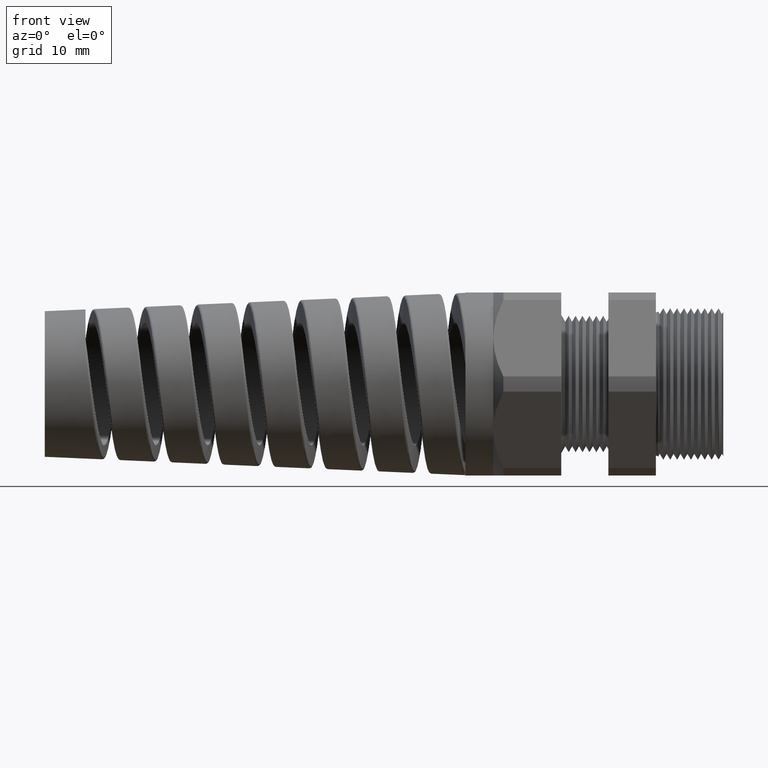
[diagram: clean part render]
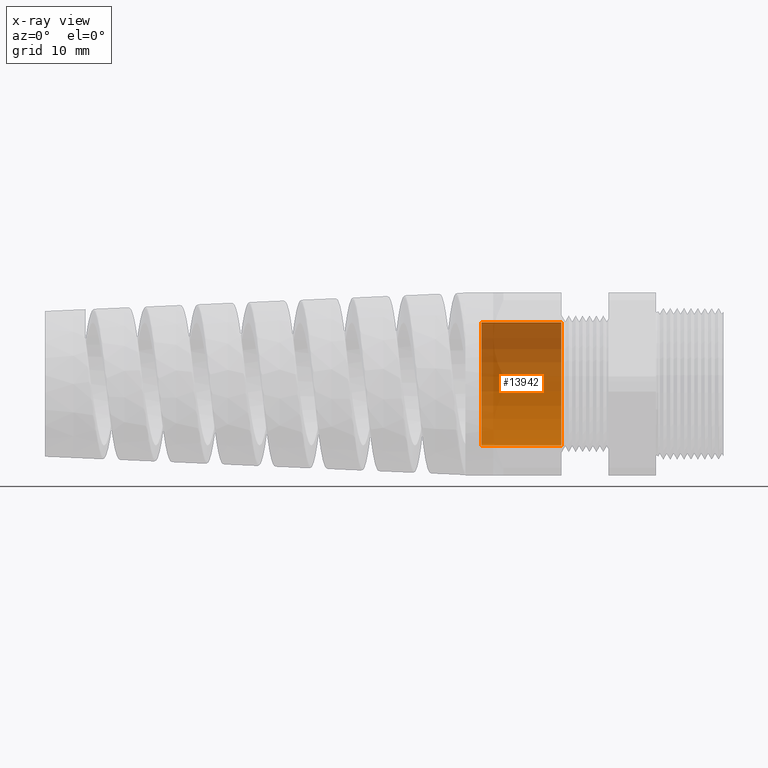
[diagram: x-ray — body ghosted, one internal face saturated and labeled with its STEP entity id]
A machine part, front view, then the same camera in x-ray: the body is ghosted and one INTERNAL B-rep face — a face not visible from any outside direction — is saturated and labeled: STEP entity #13942.
In plain terms, the highlighted cylindrical surface (partial cylindrical patch) has radius 9.0424 mm, axis along (1, 0, 0).
Its self-contained STEP definition (entity closure, byte-faithful):
#1971 = DIRECTION ( 'NONE',  ( 1.000000000000000000, 0.0000000000000000000, 0.0000000000000000000 ) ) ;
#1972 = VECTOR ( 'NONE', #1971, 39.37007874015748100 ) ;
#1973 = CARTESIAN_POINT ( 'NONE',  ( 0.0000000000000000000, 0.0000000000000000000, -0.3559999999999999800 ) ) ;
#1974 = LINE ( 'NONE', #1973, #1972 ) ;
#1975 = CARTESIAN_POINT ( 'NONE',  ( -0.8581889763779528800, 0.0000000000000000000, -0.3559999999999999800 ) ) ;
#1976 = DIRECTION ( 'NONE',  ( 0.0000000000000000000, 0.0000000000000000000, -1.000000000000000000 ) ) ;
#1977 = DIRECTION ( 'NONE',  ( 1.000000000000000000, 0.0000000000000000000, 0.0000000000000000000 ) ) ;
#1978 = CARTESIAN_POINT ( 'NONE',  ( -0.8581889763779528800, 0.0000000000000000000, 0.0000000000000000000 ) ) ;
#1979 = AXIS2_PLACEMENT_3D ( 'NONE', #1978, #1977, #1976 ) ;
#1980 = CIRCLE ( 'NONE', #1979, 0.3559999999999999800 ) ;
#1981 = CARTESIAN_POINT ( 'NONE',  ( -0.8581889763779528800, 4.359742604964577000E-017, 0.3559999999999999800 ) ) ;
#1982 = DIRECTION ( 'NONE',  ( 1.000000000000000000, 0.0000000000000000000, 0.0000000000000000000 ) ) ;
#1983 = VECTOR ( 'NONE', #1982, 39.37007874015748100 ) ;
#1984 = CARTESIAN_POINT ( 'NONE',  ( 0.0000000000000000000, 4.359742604964577000E-017, 0.3559999999999999800 ) ) ;
#1985 = LINE ( 'NONE', #1984, #1983 ) ;
#1986 = DIRECTION ( 'NONE',  ( 0.0000000000000000000, 0.0000000000000000000, -1.000000000000000000 ) ) ;
#1987 = DIRECTION ( 'NONE',  ( 1.000000000000000000, 0.0000000000000000000, 0.0000000000000000000 ) ) ;
#1988 = AXIS2_PLACEMENT_3D ( 'NONE', #1990, #1987, #1986 ) ;
#1989 = CYLINDRICAL_SURFACE ( 'NONE', #1988, 0.3559999999999999800 ) ;
#1990 = CARTESIAN_POINT ( 'NONE',  ( 0.0000000000000000000, 0.0000000000000000000, 0.0000000000000000000 ) ) ;
#1991 = FACE_OUTER_BOUND ( 'NONE', #13943, .T. ) ;
#2046 = CARTESIAN_POINT ( 'NONE',  ( -1.319999999999999800, 0.0000000000000000000, -0.3559999999999999800 ) ) ;
#2047 = DIRECTION ( 'NONE',  ( 0.0000000000000000000, 0.0000000000000000000, -1.000000000000000000 ) ) ;
#2048 = DIRECTION ( 'NONE',  ( 1.000000000000000000, 0.0000000000000000000, 0.0000000000000000000 ) ) ;
#2049 = CARTESIAN_POINT ( 'NONE',  ( -1.319999999999999800, 0.0000000000000000000, 0.0000000000000000000 ) ) ;
#2050 = AXIS2_PLACEMENT_3D ( 'NONE', #2049, #2048, #2047 ) ;
#2051 = CIRCLE ( 'NONE', #2050, 0.3559999999999999800 ) ;
#2059 = CARTESIAN_POINT ( 'NONE',  ( -1.319999999999999800, 4.359742604964577000E-017, 0.3559999999999999800 ) ) ;
#13942 = ADVANCED_FACE ( 'NONE', ( #1991 ), #1989, .T. ) ;
#13943 = EDGE_LOOP ( 'NONE', ( #13944, #13945, #13948, #13951 ) ) ;
#13944 = ORIENTED_EDGE ( 'NONE', *, *, #13984, .T. ) ;
#13945 = ORIENTED_EDGE ( 'NONE', *, *, #13946, .T. ) ;
#13946 = EDGE_CURVE ( 'NONE', #13977, #13947, #1985, .T. ) ;
#13947 = VERTEX_POINT ( 'NONE', #1981 ) ;
#13948 = ORIENTED_EDGE ( 'NONE', *, *, #13949, .F. ) ;
#13949 = EDGE_CURVE ( 'NONE', #13950, #13947, #1980, .T. ) ;
#13950 = VERTEX_POINT ( 'NONE', #1975 ) ;
#13951 = ORIENTED_EDGE ( 'NONE', *, *, #13952, .F. ) ;
#13952 = EDGE_CURVE ( 'NONE', #13985, #13950, #1974, .T. ) ;
#13977 = VERTEX_POINT ( 'NONE', #2059 ) ;
#13984 = EDGE_CURVE ( 'NONE', #13985, #13977, #2051, .T. ) ;
#13985 = VERTEX_POINT ( 'NONE', #2046 ) ;